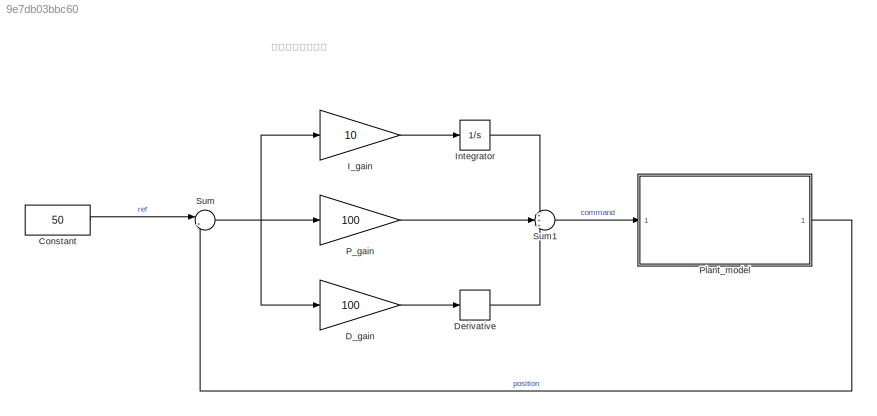
MODEL slx_9e7db03bbc60
KIND model
CONFIG AbsTol = auto
CONFIG EnableMultiTasking = off
CONFIG FixedStep = auto
CONFIG MaxStep = auto
CONFIG MinStep = auto
CONFIG RelTol = 1e-3
CONFIG SampleTimeConstraint = Unconstrained
CONFIG SolverName = VariableStepAuto
CONFIG StartTime = 0.0
CONFIG StopTime = 30
BLOCK [Constant] Constant
  Value = 50
BLOCK [Gain] D_gain
  Gain = 100
BLOCK [Derivative] Derivative
BLOCK [Gain] I_gain
  Gain = 10
BLOCK [Integrator] Integrator
BLOCK [Gain] P_gain
  Gain = 100
BLOCK [SubSystem] Plant_model
  ReferencedSubsystem = UHG_UAV_plant_model
BLOCK [Sum] Sum
  Inputs = |+-
BLOCK [Sum] Sum1
  Inputs = +++
ANNOTATION (root): 比例積分微分制御
LINE Constant:1 -> Sum:1
LINE D_gain:1 -> Derivative:1
LINE Derivative:1 -> Sum1:3
LINE I_gain:1 -> Integrator:1
LINE Integrator:1 -> Sum1:1
LINE P_gain:1 -> Sum1:2
LINE Plant_model:1 -> Sum:2
LINE Sum1:1 -> Plant_model:1
NET Sum:1 -> D_gain:1, I_gain:1, P_gain:1
note: NET lines group one-source signal fan-out (src -> all destinations, sorted); 1:1 wires keep LINE
